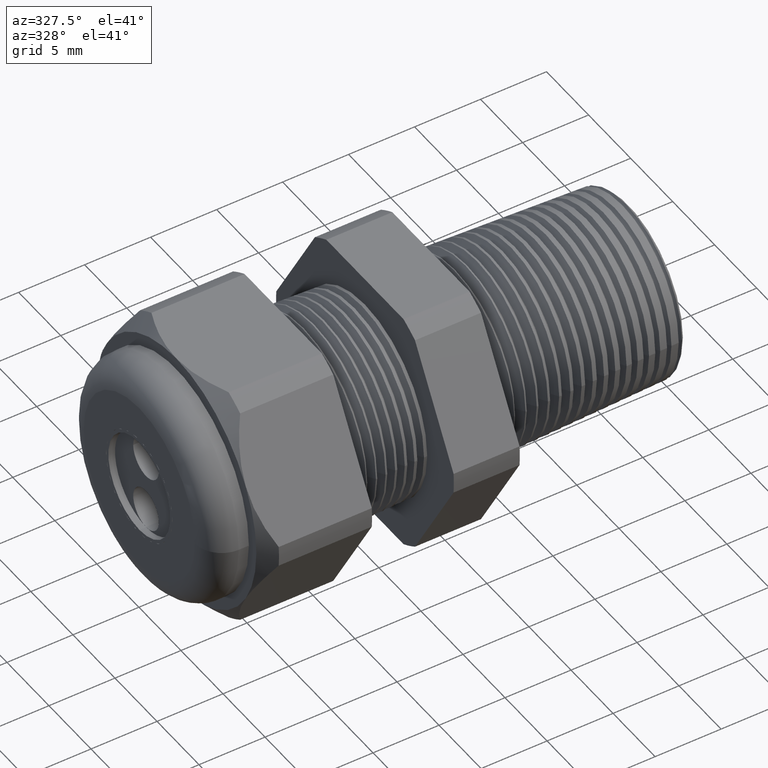
[diagram: clean part render]
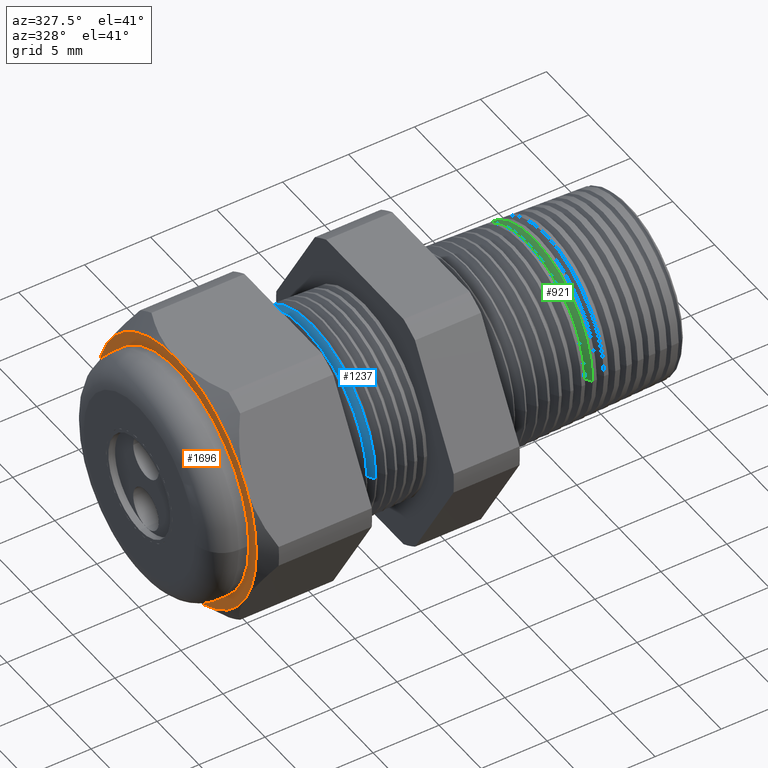
[diagram: same view with three faces highlighted in distinct colors, each labeled with its STEP entity id]
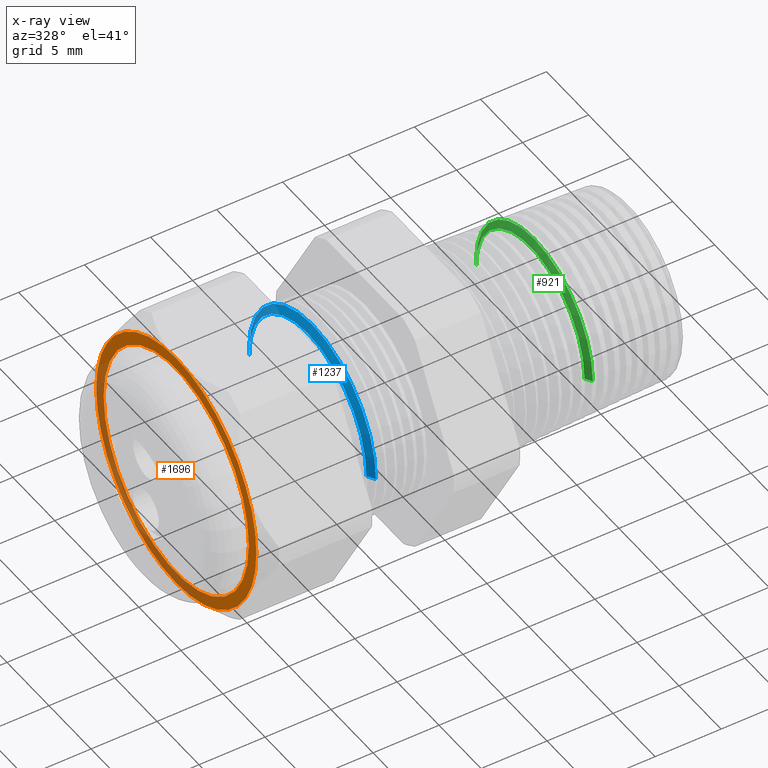
[diagram: x-ray of the same camera — body ghosted, the three highlighted faces saturated]
A machine part, auxiliary view with three faces highlighted in distinct colors.
The next image is the same camera in x-ray (body ghosted, the three faces saturated) — at least one of them is partly hidden behind the body in this view.
Their STEP definitions:

[orange] entity #1696 — the highlighted planar face has unit normal (-1, 0, 0).
#589 = VERTEX_POINT ( 'NONE', #2784 ) ;
#591 = EDGE_CURVE ( 'NONE', #592, #589, #2782, .T. ) ;
#592 = VERTEX_POINT ( 'NONE', #2839 ) ;
#1696 = ADVANCED_FACE ( 'NONE', ( #4817, #4816 ), #4815, .T. ) ;
#1697 = EDGE_LOOP ( 'NONE', ( #1698, #1699 ) ) ;
#1698 = ORIENTED_EDGE ( 'NONE', *, *, #591, .T. ) ;
#1699 = ORIENTED_EDGE ( 'NONE', *, *, #1700, .T. ) ;
#1700 = EDGE_CURVE ( 'NONE', #589, #592, #4809, .T. ) ;
#1701 = EDGE_LOOP ( 'NONE', ( #1702, #1761, #1764, #1767, #1770, #1773 ) ) ;
#1702 = ORIENTED_EDGE ( 'NONE', *, *, #1703, .T. ) ;
#1703 = EDGE_CURVE ( 'NONE', #1704, #1705, #4867, .T. ) ;
#1704 = VERTEX_POINT ( 'NONE', #4862 ) ;
#1705 = VERTEX_POINT ( 'NONE', #4861 ) ;
#1761 = ORIENTED_EDGE ( 'NONE', *, *, #1762, .T. ) ;
#1762 = EDGE_CURVE ( 'NONE', #1705, #1763, #4981, .T. ) ;
#1763 = VERTEX_POINT ( 'NONE', #4982 ) ;
#1764 = ORIENTED_EDGE ( 'NONE', *, *, #1765, .T. ) ;
#1765 = EDGE_CURVE ( 'NONE', #1763, #1766, #4976, .T. ) ;
#1766 = VERTEX_POINT ( 'NONE', #4971 ) ;
#1767 = ORIENTED_EDGE ( 'NONE', *, *, #1768, .T. ) ;
#1768 = EDGE_CURVE ( 'NONE', #1766, #1769, #4969, .T. ) ;
#1769 = VERTEX_POINT ( 'NONE', #4970 ) ;
#1770 = ORIENTED_EDGE ( 'NONE', *, *, #1771, .T. ) ;
#1771 = EDGE_CURVE ( 'NONE', #1769, #1772, #4964, .T. ) ;
#1772 = VERTEX_POINT ( 'NONE', #4959 ) ;
#1773 = ORIENTED_EDGE ( 'NONE', *, *, #1774, .T. ) ;
#1774 = EDGE_CURVE ( 'NONE', #1772, #1704, #5021, .T. ) ;
#2041 = DIRECTION ( 'NONE',  ( 0.0000000000000000000, 1.000000000000000000, 0.0000000000000000000 ) ) ;
#2779 = DIRECTION ( 'NONE',  ( 1.000000000000000000, -3.234525066229925200E-018, -0.0000000000000000000 ) ) ;
#2780 = CARTESIAN_POINT ( 'NONE',  ( -1.069763779527559000, -1.122972574636584600E-017, 0.0000000000000000000 ) ) ;
#2781 = AXIS2_PLACEMENT_3D ( 'NONE', #2780, #2779, #2041 ) ;
#2782 = CIRCLE ( 'NONE', #2781, 0.3399999999999999700 ) ;
#2784 = CARTESIAN_POINT ( 'NONE',  ( -1.069763779527559000, -0.3399999999999999700, 4.163661602996082400E-017 ) ) ;
#2839 = CARTESIAN_POINT ( 'NONE',  ( -1.069763779527559000, 0.3399999999999999700, 0.0000000000000000000 ) ) ;
#4809 = CIRCLE ( 'NONE', #4870, 0.3399999999999999700 ) ;
#4810 = DIRECTION ( 'NONE',  ( -3.234525066229925200E-018, -1.000000000000000000, 0.0000000000000000000 ) ) ;
#4811 = DIRECTION ( 'NONE',  ( -1.000000000000000000, 3.234525066229925200E-018, 0.0000000000000000000 ) ) ;
#4812 = CARTESIAN_POINT ( 'NONE',  ( -1.069763779527559000, 0.7500000000000002200, 0.0000000000000000000 ) ) ;
#4813 = CARTESIAN_POINT ( 'NONE',  ( -1.069763779527559000, -1.122972574636584600E-017, 0.0000000000000000000 ) ) ;
#4814 = AXIS2_PLACEMENT_3D ( 'NONE', #4812, #4811, #4810 ) ;
#4815 = PLANE ( 'NONE',  #4814 ) ;
#4816 = FACE_OUTER_BOUND ( 'NONE', #1701, .T. ) ;
#4817 = FACE_BOUND ( 'NONE', #1697, .T. ) ;
#4861 = CARTESIAN_POINT ( 'NONE',  ( -1.069763779527559000, -0.3247595264191646700, 0.1874999999999999700 ) ) ;
#4862 = CARTESIAN_POINT ( 'NONE',  ( -1.069763779527559000, -0.3247595264191646100, -0.1875000000000000800 ) ) ;
#4863 = DIRECTION ( 'NONE',  ( 0.0000000000000000000, 0.0000000000000000000, 1.000000000000000000 ) ) ;
#4864 = DIRECTION ( 'NONE',  ( -1.000000000000000000, 0.0000000000000000000, 0.0000000000000000000 ) ) ;
#4865 = CARTESIAN_POINT ( 'NONE',  ( -1.069763779527559000, 3.460177759826753200E-018, 0.0000000000000000000 ) ) ;
#4866 = AXIS2_PLACEMENT_3D ( 'NONE', #4865, #4864, #4863 ) ;
#4867 = CIRCLE ( 'NONE', #4866, 0.3749999999999999400 ) ;
#4868 = DIRECTION ( 'NONE',  ( 0.0000000000000000000, 1.000000000000000000, 0.0000000000000000000 ) ) ;
#4869 = DIRECTION ( 'NONE',  ( 1.000000000000000000, -3.234525066229925200E-018, -0.0000000000000000000 ) ) ;
#4870 = AXIS2_PLACEMENT_3D ( 'NONE', #4813, #4869, #4868 ) ;
#4959 = CARTESIAN_POINT ( 'NONE',  ( -1.069763779527559000, 3.460177759826753200E-018, -0.3750000000000001100 ) ) ;
#4960 = DIRECTION ( 'NONE',  ( 0.0000000000000000000, 0.0000000000000000000, 1.000000000000000000 ) ) ;
#4961 = DIRECTION ( 'NONE',  ( -1.000000000000000000, 0.0000000000000000000, 0.0000000000000000000 ) ) ;
#4962 = CARTESIAN_POINT ( 'NONE',  ( -1.069763779527559000, 3.460177759826753200E-018, 0.0000000000000000000 ) ) ;
#4963 = AXIS2_PLACEMENT_3D ( 'NONE', #4962, #4961, #4960 ) ;
#4964 = CIRCLE ( 'NONE', #4963, 0.3749999999999999400 ) ;
#4965 = DIRECTION ( 'NONE',  ( 0.0000000000000000000, 0.0000000000000000000, 1.000000000000000000 ) ) ;
#4966 = DIRECTION ( 'NONE',  ( -1.000000000000000000, 0.0000000000000000000, 0.0000000000000000000 ) ) ;
#4967 = CARTESIAN_POINT ( 'NONE',  ( -1.069763779527559000, 3.460177759826753200E-018, 0.0000000000000000000 ) ) ;
#4968 = AXIS2_PLACEMENT_3D ( 'NONE', #4967, #4966, #4965 ) ;
#4969 = CIRCLE ( 'NONE', #4968, 0.3749999999999999400 ) ;
#4970 = CARTESIAN_POINT ( 'NONE',  ( -1.069763779527559000, 0.3247595264191646100, -0.1875000000000000600 ) ) ;
#4971 = CARTESIAN_POINT ( 'NONE',  ( -1.069763779527559000, 0.3247595264191647200, 0.1875000000000001400 ) ) ;
#4972 = DIRECTION ( 'NONE',  ( 0.0000000000000000000, 0.0000000000000000000, 1.000000000000000000 ) ) ;
#4973 = DIRECTION ( 'NONE',  ( -1.000000000000000000, 0.0000000000000000000, 0.0000000000000000000 ) ) ;
#4974 = CARTESIAN_POINT ( 'NONE',  ( -1.069763779527559000, 3.460177759826753200E-018, 0.0000000000000000000 ) ) ;
#4975 = AXIS2_PLACEMENT_3D ( 'NONE', #4974, #4973, #4972 ) ;
#4976 = CIRCLE ( 'NONE', #4975, 0.3749999999999999400 ) ;
#4977 = DIRECTION ( 'NONE',  ( 0.0000000000000000000, 0.0000000000000000000, 1.000000000000000000 ) ) ;
#4978 = DIRECTION ( 'NONE',  ( -1.000000000000000000, 0.0000000000000000000, 0.0000000000000000000 ) ) ;
#4979 = CARTESIAN_POINT ( 'NONE',  ( -1.069763779527559000, 3.460177759826753200E-018, 0.0000000000000000000 ) ) ;
#4980 = AXIS2_PLACEMENT_3D ( 'NONE', #4979, #4978, #4977 ) ;
#4981 = CIRCLE ( 'NONE', #4980, 0.3749999999999999400 ) ;
#4982 = CARTESIAN_POINT ( 'NONE',  ( -1.069763779527559000, 3.460177759826753200E-018, 0.3749999999999999400 ) ) ;
#5017 = DIRECTION ( 'NONE',  ( 0.0000000000000000000, 0.0000000000000000000, 1.000000000000000000 ) ) ;
#5018 = DIRECTION ( 'NONE',  ( -1.000000000000000000, 0.0000000000000000000, 0.0000000000000000000 ) ) ;
#5019 = CARTESIAN_POINT ( 'NONE',  ( -1.069763779527559000, 3.460177759826753200E-018, 0.0000000000000000000 ) ) ;
#5020 = AXIS2_PLACEMENT_3D ( 'NONE', #5019, #5018, #5017 ) ;
#5021 = CIRCLE ( 'NONE', #5020, 0.3749999999999999400 ) ;

[blue] entity #1237 — the highlighted conical surface has half-angle 58 deg.
#1237 = ADVANCED_FACE ( 'NONE', ( #4037 ), #4036, .T. ) ;
#1238 = EDGE_LOOP ( 'NONE', ( #1645, #1652, #1655, #1647 ) ) ;
#1644 = VERTEX_POINT ( 'NONE', #4734 ) ;
#1645 = ORIENTED_EDGE ( 'NONE', *, *, #1651, .T. ) ;
#1646 = VERTEX_POINT ( 'NONE', #4733 ) ;
#1647 = ORIENTED_EDGE ( 'NONE', *, *, #1648, .F. ) ;
#1648 = EDGE_CURVE ( 'NONE', #1650, #1646, #4732, .T. ) ;
#1650 = VERTEX_POINT ( 'NONE', #4725 ) ;
#1651 = EDGE_CURVE ( 'NONE', #1650, #1644, #4720, .T. ) ;
#1652 = ORIENTED_EDGE ( 'NONE', *, *, #1653, .T. ) ;
#1653 = EDGE_CURVE ( 'NONE', #1644, #1654, #4721, .T. ) ;
#1654 = VERTEX_POINT ( 'NONE', #4777 ) ;
#1655 = ORIENTED_EDGE ( 'NONE', *, *, #1656, .T. ) ;
#1656 = EDGE_CURVE ( 'NONE', #1654, #1646, #4776, .T. ) ;
#4032 = DIRECTION ( 'NONE',  ( 0.0000000000000000000, 1.000000000000000000, 0.0000000000000000000 ) ) ;
#4033 = DIRECTION ( 'NONE',  ( 1.000000000000000000, -3.234525066229925200E-018, -0.0000000000000000000 ) ) ;
#4034 = AXIS2_PLACEMENT_3D ( 'NONE', #4035, #4033, #4032 ) ;
#4035 = CARTESIAN_POINT ( 'NONE',  ( -0.6773136650747175700, -1.249911547880836500E-017, 0.0000000000000000000 ) ) ;
#4036 = CONICAL_SURFACE ( 'NONE', #4034, 0.2745114984791284800, 1.012290966156727900 ) ;
#4037 = FACE_OUTER_BOUND ( 'NONE', #1238, .T. ) ;
#4716 = DIRECTION ( 'NONE',  ( 0.0000000000000000000, 1.000000000000000000, 0.0000000000000000000 ) ) ;
#4717 = DIRECTION ( 'NONE',  ( 1.000000000000000000, -3.234525066229925200E-018, -0.0000000000000000000 ) ) ;
#4718 = CARTESIAN_POINT ( 'NONE',  ( -0.6773136650747175700, -1.249911547880836500E-017, 0.0000000000000000000 ) ) ;
#4719 = AXIS2_PLACEMENT_3D ( 'NONE', #4718, #4717, #4716 ) ;
#4720 = CIRCLE ( 'NONE', #4719, 0.2745114984791284800 ) ;
#4721 = LINE ( 'NONE', #4780, #4779 ) ;
#4725 = CARTESIAN_POINT ( 'NONE',  ( -0.6773136650747175700, 0.2745114984791284800, 3.504680181497288700E-017 ) ) ;
#4729 = DIRECTION ( 'NONE',  ( 0.5299192642331908000, 0.8480480961564348400, 0.0000000000000000000 ) ) ;
#4730 = VECTOR ( 'NONE', #4729, 39.37007874015748100 ) ;
#4731 = CARTESIAN_POINT ( 'NONE',  ( -0.6773136650747175700, 0.2745114984791284800, 0.0000000000000000000 ) ) ;
#4732 = LINE ( 'NONE', #4731, #4730 ) ;
#4733 = CARTESIAN_POINT ( 'NONE',  ( -0.6632975096410501600, 0.2969420359840349600, 3.636371039830022000E-017 ) ) ;
#4734 = CARTESIAN_POINT ( 'NONE',  ( -0.6773136650747175700, -0.2745114984791284800, 0.0000000000000000000 ) ) ;
#4771 = DIRECTION ( 'NONE',  ( 0.0000000000000000000, 1.000000000000000000, 0.0000000000000000000 ) ) ;
#4772 = DIRECTION ( 'NONE',  ( -1.000000000000000000, 3.234525066229925200E-018, 0.0000000000000000000 ) ) ;
#4773 = CARTESIAN_POINT ( 'NONE',  ( -0.6632975096410501600, -1.254445108489073400E-017, 0.0000000000000000000 ) ) ;
#4774 = AXIS2_PLACEMENT_3D ( 'NONE', #4773, #4772, #4771 ) ;
#4776 = CIRCLE ( 'NONE', #4774, 0.2969420359840350100 ) ;
#4777 = CARTESIAN_POINT ( 'NONE',  ( -0.6632975096410501600, -0.2969420359840349600, 0.0000000000000000000 ) ) ;
#4778 = DIRECTION ( 'NONE',  ( 0.5299192642331908000, -0.8480480961564348400, 1.038525086900140500E-016 ) ) ;
#4779 = VECTOR ( 'NONE', #4778, 39.37007874015748100 ) ;
#4780 = CARTESIAN_POINT ( 'NONE',  ( -0.6773136650747175700, -0.2745114984791284800, 3.361685252348425800E-017 ) ) ;

[green] entity #921 — the highlighted conical surface has half-angle 58 deg.
#921 = ADVANCED_FACE ( 'NONE', ( #3403 ), #3405, .T. ) ;
#922 = EDGE_LOOP ( 'NONE', ( #923, #946, #949, #966 ) ) ;
#923 = ORIENTED_EDGE ( 'NONE', *, *, #924, .T. ) ;
#924 = EDGE_CURVE ( 'NONE', #925, #945, #3461, .T. ) ;
#925 = VERTEX_POINT ( 'NONE', #3455 ) ;
#945 = VERTEX_POINT ( 'NONE', #3477 ) ;
#946 = ORIENTED_EDGE ( 'NONE', *, *, #947, .T. ) ;
#947 = EDGE_CURVE ( 'NONE', #945, #948, #3476, .T. ) ;
#948 = VERTEX_POINT ( 'NONE', #3472 ) ;
#949 = ORIENTED_EDGE ( 'NONE', *, *, #964, .T. ) ;
#964 = EDGE_CURVE ( 'NONE', #948, #965, #3511, .T. ) ;
#965 = VERTEX_POINT ( 'NONE', #3506 ) ;
#966 = ORIENTED_EDGE ( 'NONE', *, *, #967, .F. ) ;
#967 = EDGE_CURVE ( 'NONE', #925, #965, #3505, .T. ) ;
#3401 = DIRECTION ( 'NONE',  ( 1.000000000000000000, -3.234525066229925200E-018, -0.0000000000000000000 ) ) ;
#3402 = AXIS2_PLACEMENT_3D ( 'NONE', #3404, #3401, #3460 ) ;
#3403 = FACE_OUTER_BOUND ( 'NONE', #922, .T. ) ;
#3404 = CARTESIAN_POINT ( 'NONE',  ( -0.01373702801092117000, -1.464547074475577300E-017, 0.0000000000000000000 ) ) ;
#3405 = CONICAL_SURFACE ( 'NONE', #3402, 0.2540184132628081100, 1.012290966156727600 ) ;
#3455 = CARTESIAN_POINT ( 'NONE',  ( -0.01373702801092117000, 0.2540184132628081100, 3.237003362250734800E-017 ) ) ;
#3456 = DIRECTION ( 'NONE',  ( 0.0000000000000000000, 1.000000000000000000, 0.0000000000000000000 ) ) ;
#3457 = DIRECTION ( 'NONE',  ( 1.000000000000000000, -3.234525066229925200E-018, -0.0000000000000000000 ) ) ;
#3458 = CARTESIAN_POINT ( 'NONE',  ( -0.01373702801092117000, -1.464547074475577300E-017, 0.0000000000000000000 ) ) ;
#3459 = AXIS2_PLACEMENT_3D ( 'NONE', #3458, #3457, #3456 ) ;
#3460 = DIRECTION ( 'NONE',  ( 0.0000000000000000000, 1.000000000000000000, 0.0000000000000000000 ) ) ;
#3461 = CIRCLE ( 'NONE', #3459, 0.2540184132628081100 ) ;
#3472 = CARTESIAN_POINT ( 'NONE',  ( -0.001359467828462092200, -0.2738266502080835000, 0.0000000000000000000 ) ) ;
#3473 = DIRECTION ( 'NONE',  ( 0.5299192642331909100, -0.8480480961564346200, 1.038525086900140100E-016 ) ) ;
#3474 = VECTOR ( 'NONE', #3473, 39.37007874015748900 ) ;
#3475 = CARTESIAN_POINT ( 'NONE',  ( -0.01373702801092117000, -0.2540184132628081100, 3.110725628695132600E-017 ) ) ;
#3476 = LINE ( 'NONE', #3475, #3474 ) ;
#3477 = CARTESIAN_POINT ( 'NONE',  ( -0.01373702801092117000, -0.2540184132628081100, 0.0000000000000000000 ) ) ;
#3502 = DIRECTION ( 'NONE',  ( 0.5299192642331909100, 0.8480480961564346200, 0.0000000000000000000 ) ) ;
#3503 = VECTOR ( 'NONE', #3502, 39.37007874015748900 ) ;
#3504 = CARTESIAN_POINT ( 'NONE',  ( -0.01373702801092117000, 0.2540184132628081100, 0.0000000000000000000 ) ) ;
#3505 = LINE ( 'NONE', #3504, #3503 ) ;
#3506 = CARTESIAN_POINT ( 'NONE',  ( -0.001359467828462092200, 0.2738266502080835000, 3.353298556907165800E-017 ) ) ;
#3507 = DIRECTION ( 'NONE',  ( 2.922820299943911400E-018, 1.000000000000000000, 0.0000000000000000000 ) ) ;
#3508 = DIRECTION ( 'NONE',  ( -1.000000000000000000, 3.234525066229925200E-018, 0.0000000000000000000 ) ) ;
#3509 = CARTESIAN_POINT ( 'NONE',  ( -0.001359467828462092200, -1.468550627342470400E-017, 0.0000000000000000000 ) ) ;
#3510 = AXIS2_PLACEMENT_3D ( 'NONE', #3509, #3508, #3507 ) ;
#3511 = CIRCLE ( 'NONE', #3510, 0.2738266502080835000 ) ;